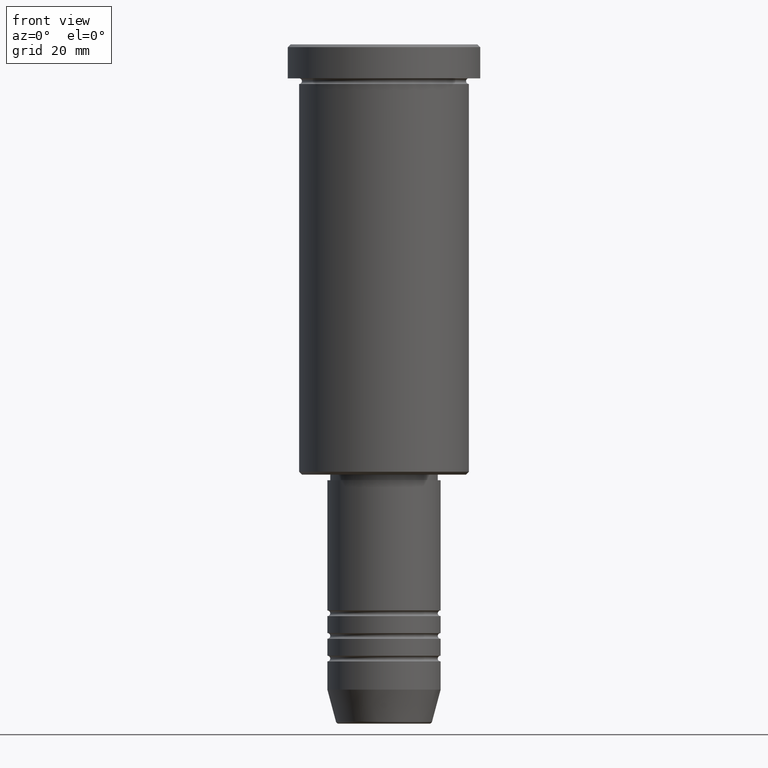
[diagram: clean part render]
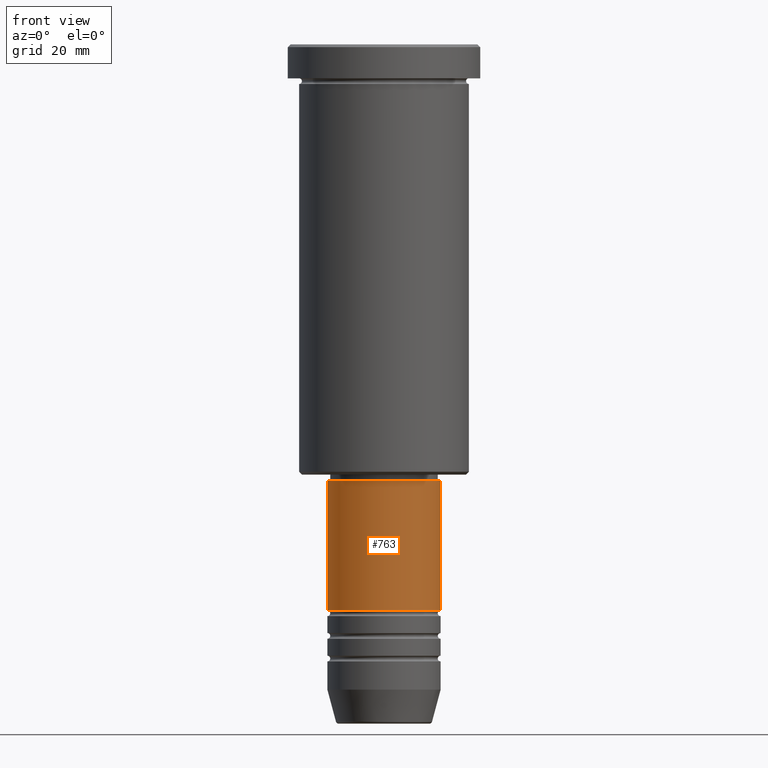
[diagram: same view with one face highlighted and labeled with its STEP entity id]
A machine part, front view. The second image highlights one B-rep face of the part: STEP entity #763.
In plain terms, the highlighted cylindrical surface (partial cylindrical patch) has radius 10 mm, axis along (-0, -0, 1).
Its self-contained STEP definition (entity closure, byte-faithful):
#3 = EDGE_CURVE ( 'NONE', #245, #396, #105, .T. ) ;
#68 = VECTOR ( 'NONE', #180, 1000.000000000000000 ) ;
#105 = CIRCLE ( 'NONE', #681, 10.00000000000000178 ) ;
#120 = CARTESIAN_POINT ( 'NONE',  ( 10.00000000000000000, 0.000000000000000000, 0.000000000000000000 ) ) ;
#169 = CIRCLE ( 'NONE', #192, 9.999999999999998224 ) ;
#180 = DIRECTION ( 'NONE',  ( -0.000000000000000000, -0.000000000000000000, 1.000000000000000000 ) ) ;
#192 = AXIS2_PLACEMENT_3D ( 'NONE', #405, #781, #687 ) ;
#205 = CARTESIAN_POINT ( 'NONE',  ( 0.000000000000000000, 0.000000000000000000, -99.99999999999997158 ) ) ;
#206 = FACE_OUTER_BOUND ( 'NONE', #735, .T. ) ;
#220 = DIRECTION ( 'NONE',  ( 1.000000000000000000, 0.000000000000000000, 0.000000000000000000 ) ) ;
#245 = VERTEX_POINT ( 'NONE', #932 ) ;
#250 = ORIENTED_EDGE ( 'NONE', *, *, #389, .F. ) ;
#274 = VERTEX_POINT ( 'NONE', #1092 ) ;
#365 = LINE ( 'NONE', #744, #68 ) ;
#389 = EDGE_CURVE ( 'NONE', #274, #610, #169, .T. ) ;
#391 = AXIS2_PLACEMENT_3D ( 'NONE', #1113, #682, #220 ) ;
#396 = VERTEX_POINT ( 'NONE', #789 ) ;
#405 = CARTESIAN_POINT ( 'NONE',  ( 0.000000000000000000, 0.000000000000000000, -77.00000000000004263 ) ) ;
#480 = CYLINDRICAL_SURFACE ( 'NONE', #391, 10.00000000000000000 ) ;
#509 = ORIENTED_EDGE ( 'NONE', *, *, #3, .T. ) ;
#581 = DIRECTION ( 'NONE',  ( -0.000000000000000000, -0.000000000000000000, 1.000000000000000000 ) ) ;
#610 = VERTEX_POINT ( 'NONE', #1023 ) ;
#681 = AXIS2_PLACEMENT_3D ( 'NONE', #205, #581, #854 ) ;
#682 = DIRECTION ( 'NONE',  ( -0.000000000000000000, -0.000000000000000000, 1.000000000000000000 ) ) ;
#687 = DIRECTION ( 'NONE',  ( 1.000000000000000000, 0.000000000000000000, 0.000000000000000000 ) ) ;
#704 = ORIENTED_EDGE ( 'NONE', *, *, #862, .T. ) ;
#735 = EDGE_LOOP ( 'NONE', ( #894, #509, #704, #250 ) ) ;
#744 = CARTESIAN_POINT ( 'NONE',  ( -10.00000000000000000, 1.224646799147353256E-15, 0.000000000000000000 ) ) ;
#760 = VECTOR ( 'NONE', #779, 1000.000000000000000 ) ;
#763 = ADVANCED_FACE ( 'NONE', ( #206 ), #480, .T. ) ;
#779 = DIRECTION ( 'NONE',  ( -0.000000000000000000, -0.000000000000000000, 1.000000000000000000 ) ) ;
#781 = DIRECTION ( 'NONE',  ( -0.000000000000000000, -0.000000000000000000, 1.000000000000000000 ) ) ;
#789 = CARTESIAN_POINT ( 'NONE',  ( 10.00000000000000178, 0.000000000000000000, -99.99999999999997158 ) ) ;
#854 = DIRECTION ( 'NONE',  ( 1.000000000000000000, 0.000000000000000000, 0.000000000000000000 ) ) ;
#857 = EDGE_CURVE ( 'NONE', #245, #274, #365, .T. ) ;
#862 = EDGE_CURVE ( 'NONE', #396, #610, #967, .T. ) ;
#894 = ORIENTED_EDGE ( 'NONE', *, *, #857, .F. ) ;
#932 = CARTESIAN_POINT ( 'NONE',  ( -10.00000000000000178, 1.224646799147353454E-15, -99.99999999999997158 ) ) ;
#967 = LINE ( 'NONE', #120, #760 ) ;
#1023 = CARTESIAN_POINT ( 'NONE',  ( 9.999999999999998224, 0.000000000000000000, -77.00000000000004263 ) ) ;
#1092 = CARTESIAN_POINT ( 'NONE',  ( -9.999999999999998224, 1.224646799147353256E-15, -77.00000000000004263 ) ) ;
#1113 = CARTESIAN_POINT ( 'NONE',  ( 0.000000000000000000, 0.000000000000000000, 0.000000000000000000 ) ) ;